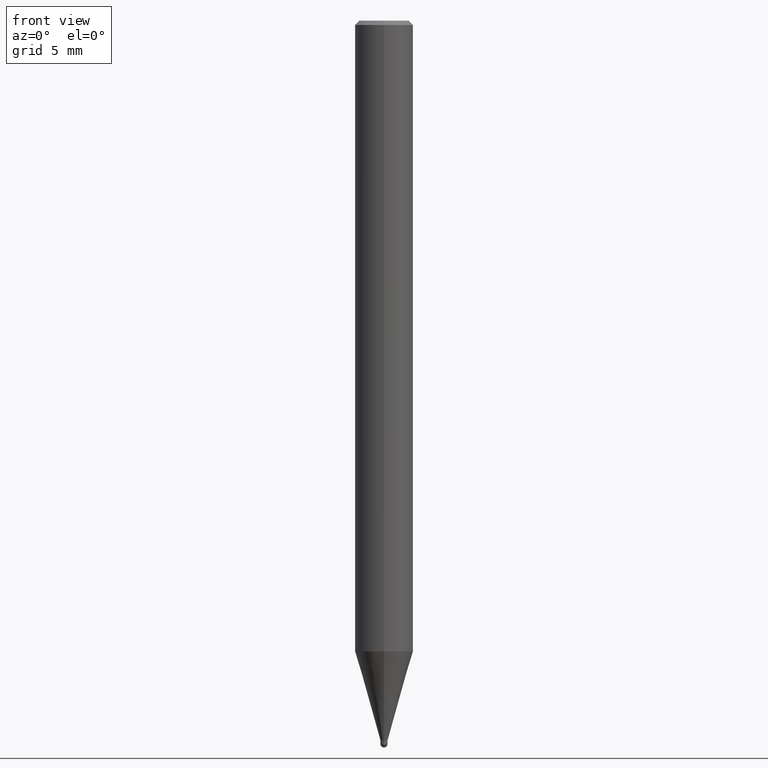
[diagram: clean part render]
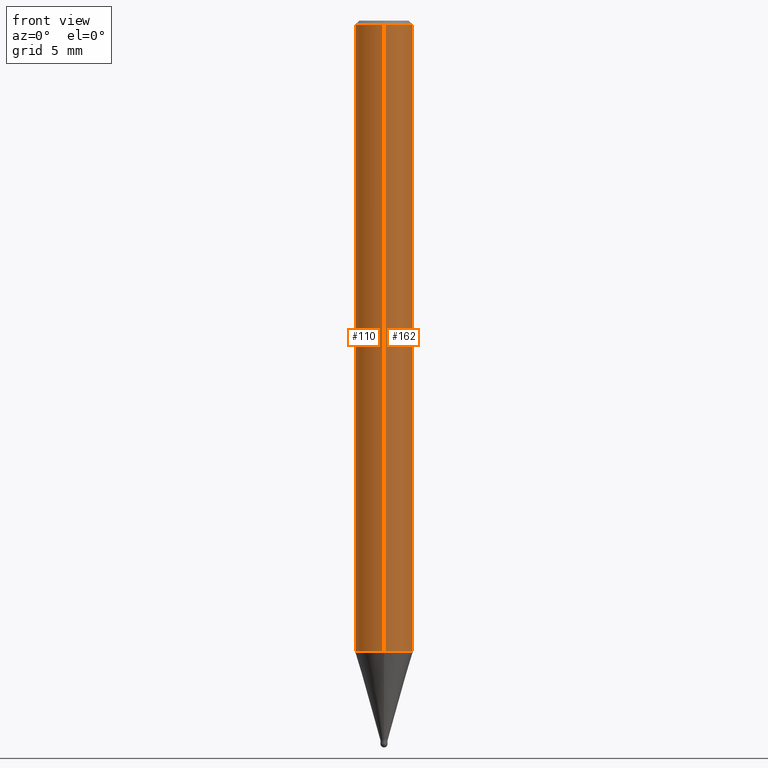
[diagram: same view with one multi-face feature highlighted, each face labeled with its STEP entity id]
A machine part, front view. The highlighted faces form ONE feature: a constant-radius fillet chain: 2 tangent blend faces with common blend radius 2 mm. The faces share edges in the B-rep.
Their STEP definitions:
[1] entity #162 (Cylinder):
#90=EDGE_CURVE('',#98,#140,#215,.T.);
#94=VERTEX_POINT('',#219);
#96=EDGE_CURVE('',#94,#98,#221,.T.);
#98=VERTEX_POINT('',#223);
#100=EDGE_CURVE('',#94,#150,#225,.T.);
#140=VERTEX_POINT('',#272);
#150=VERTEX_POINT('',#282);
#154=EDGE_CURVE('',#140,#150,#286,.T.);
#162=ADVANCED_FACE('',(#295),#296,.T.);
#215=CIRCLE('',#350,2.0);
#219=CARTESIAN_POINT('',(0.0,2.0,-0.299999999999997));
#221=LINE('',#359,#360);
#223=CARTESIAN_POINT('',(0.0,2.0,-43.397));
#225=CIRCLE('',#365,2.0);
#272=CARTESIAN_POINT('',(2.44921270764475E-016,-2.0,-43.397));
#282=CARTESIAN_POINT('',(2.44921270764475E-016,-2.0,-0.299999999999997));
#286=LINE('',#438,#439);
#295=FACE_OUTER_BOUND('',#449,.T.);
#296=CYLINDRICAL_SURFACE('',#450,2.0);
#350=AXIS2_PLACEMENT_3D('',#499,#500,#501);
#359=CARTESIAN_POINT('',(-2.44921270764475E-016,2.0,-21.8485));
#360=VECTOR('',#503,1.0);
#365=AXIS2_PLACEMENT_3D('',#504,#505,#506);
#438=CARTESIAN_POINT('',(2.44921270764475E-016,-2.0,-21.8485));
#439=VECTOR('',#580,1.0);
#449=EDGE_LOOP('',(#593,#594,#595,#596));
#450=AXIS2_PLACEMENT_3D('',#597,#598,#599);
#499=CARTESIAN_POINT('',(0.0,0.0,-43.397));
#500=DIRECTION('',(0.0,0.0,-1.0));
#501=DIRECTION('',(0.0,1.0,0.0));
#503=DIRECTION('',(0.0,0.0,-1.0));
#504=CARTESIAN_POINT('',(0.0,0.0,-0.299999999999997));
#505=DIRECTION('',(0.0,0.0,-1.0));
#506=DIRECTION('',(0.0,1.0,0.0));
#580=DIRECTION('',(-0.0,-0.0,1.0));
#593=ORIENTED_EDGE('',*,*,#96,.F.);
#594=ORIENTED_EDGE('',*,*,#100,.T.);
#595=ORIENTED_EDGE('',*,*,#154,.F.);
#596=ORIENTED_EDGE('',*,*,#90,.F.);
#597=CARTESIAN_POINT('',(0.0,0.0,-21.8485));
#598=DIRECTION('',(-0.0,-0.0,1.0));
#599=DIRECTION('',(0.0,1.0,0.0));
[2] entity #110 (Cylinder):
#88=EDGE_CURVE('',#140,#98,#213,.T.);
#94=VERTEX_POINT('',#219);
#96=EDGE_CURVE('',#94,#98,#221,.T.);
#98=VERTEX_POINT('',#223);
#110=ADVANCED_FACE('',(#237),#238,.T.);
#112=EDGE_CURVE('',#150,#94,#240,.T.);
#140=VERTEX_POINT('',#272);
#150=VERTEX_POINT('',#282);
#154=EDGE_CURVE('',#140,#150,#286,.T.);
#213=CIRCLE('',#347,2.0);
#219=CARTESIAN_POINT('',(0.0,2.0,-0.299999999999997));
#221=LINE('',#359,#360);
#223=CARTESIAN_POINT('',(0.0,2.0,-43.397));
#237=FACE_OUTER_BOUND('',#378,.T.);
#238=CYLINDRICAL_SURFACE('',#379,2.0);
#240=CIRCLE('',#382,2.0);
#272=CARTESIAN_POINT('',(2.44921270764475E-016,-2.0,-43.397));
#282=CARTESIAN_POINT('',(2.44921270764475E-016,-2.0,-0.299999999999997));
#286=LINE('',#438,#439);
#347=AXIS2_PLACEMENT_3D('',#496,#497,#498);
#359=CARTESIAN_POINT('',(-2.44921270764475E-016,2.0,-21.8485));
#360=VECTOR('',#503,1.0);
#378=EDGE_LOOP('',(#525,#526,#527,#528));
#379=AXIS2_PLACEMENT_3D('',#529,#530,#531);
#382=AXIS2_PLACEMENT_3D('',#532,#533,#534);
#438=CARTESIAN_POINT('',(2.44921270764475E-016,-2.0,-21.8485));
#439=VECTOR('',#580,1.0);
#496=CARTESIAN_POINT('',(0.0,0.0,-43.397));
#497=DIRECTION('',(0.0,0.0,-1.0));
#498=DIRECTION('',(0.0,1.0,0.0));
#503=DIRECTION('',(0.0,0.0,-1.0));
#525=ORIENTED_EDGE('',*,*,#96,.T.);
#526=ORIENTED_EDGE('',*,*,#88,.F.);
#527=ORIENTED_EDGE('',*,*,#154,.T.);
#528=ORIENTED_EDGE('',*,*,#112,.T.);
#529=CARTESIAN_POINT('',(0.0,0.0,-21.8485));
#530=DIRECTION('',(-0.0,-0.0,1.0));
#531=DIRECTION('',(0.0,1.0,0.0));
#532=CARTESIAN_POINT('',(0.0,0.0,-0.299999999999997));
#533=DIRECTION('',(0.0,0.0,-1.0));
#534=DIRECTION('',(0.0,1.0,0.0));
#580=DIRECTION('',(-0.0,-0.0,1.0));